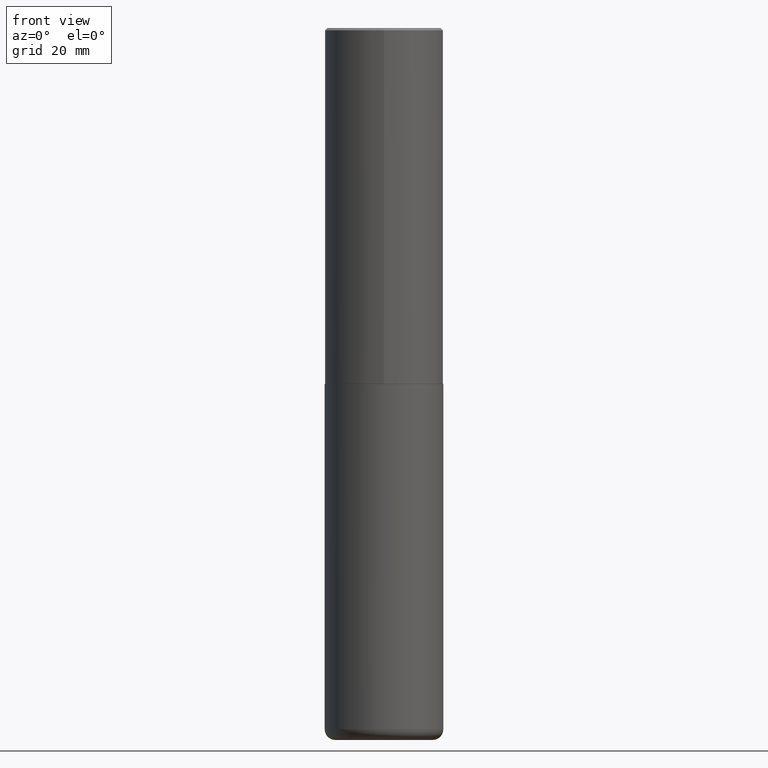
[diagram: clean part render]
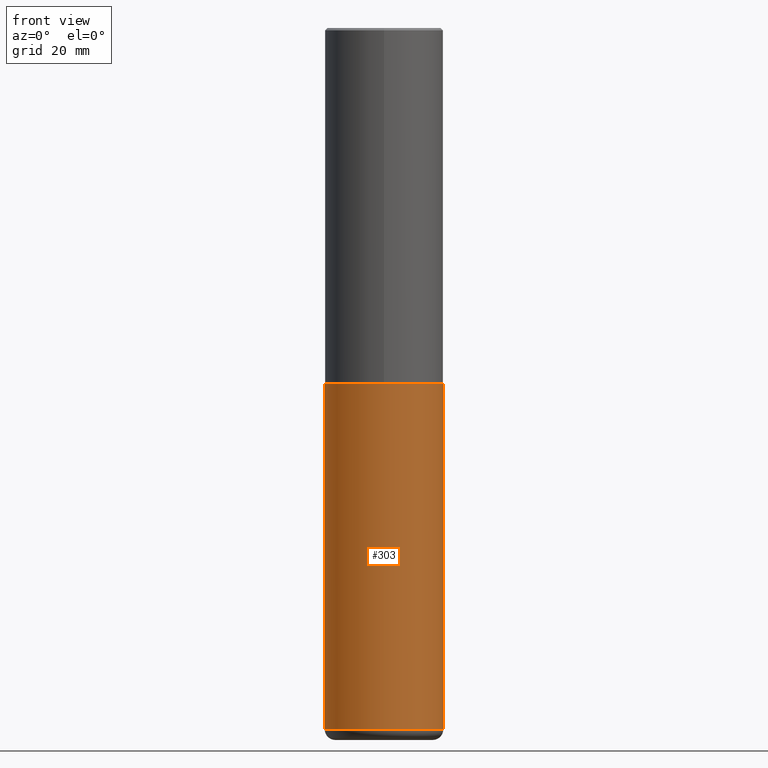
[diagram: same view with one face highlighted and labeled with its STEP entity id]
A machine part, front view. The second image highlights one B-rep face of the part: STEP entity #303.
In plain terms, the highlighted cylindrical surface (partial cylindrical patch) has radius 12.7 mm, axis along (-0, 0, 1).
Its self-contained STEP definition (entity closure, byte-faithful):
#34 = DIRECTION ( 'NONE',  ( -2.445468806185136877E-29, 3.491481338843145188E-15, 1.000000000000000000 ) ) ;
#43 = VECTOR ( 'NONE', #404, 39.37007874015748143 ) ;
#66 = VERTEX_POINT ( 'NONE', #88 ) ;
#69 = VERTEX_POINT ( 'NONE', #335 ) ;
#73 = CIRCLE ( 'NONE', #209, 0.5000000000000000000 ) ;
#81 = ORIENTED_EDGE ( 'NONE', *, *, #368, .T. ) ;
#88 = CARTESIAN_POINT ( 'NONE',  ( -0.5000000000000001110, -1.708194103376248851E-14, -5.910000000000000142 ) ) ;
#102 = DIRECTION ( 'NONE',  ( -2.445468806185136597E-29, 3.491481338843145583E-15, 1.000000000000000000 ) ) ;
#103 = VERTEX_POINT ( 'NONE', #152 ) ;
#108 = CARTESIAN_POINT ( 'NONE',  ( -0.5000000000000000000, -1.200183568574571118E-14, -3.000000000000000444 ) ) ;
#137 = DIRECTION ( 'NONE',  ( -2.445468806185136597E-29, 3.491481338843145583E-15, 1.000000000000000000 ) ) ;
#152 = CARTESIAN_POINT ( 'NONE',  ( 0.5000000000000000000, -1.396592535537257129E-14, -3.000000000000000444 ) ) ;
#208 = CARTESIAN_POINT ( 'NONE',  ( 0.5000000000000000000, -3.491481338843133355E-15, 2.438088387897967896E-29 ) ) ;
#209 = AXIS2_PLACEMENT_3D ( 'NONE', #390, #137, #329 ) ;
#232 = CARTESIAN_POINT ( 'NONE',  ( -0.5000000000000000000, 3.552713678800500929E-15, -2.459467545127452891E-29 ) ) ;
#237 = DIRECTION ( 'NONE',  ( 1.000000000000000000, -6.982962677686266711E-15, 4.876176775795935793E-29 ) ) ;
#241 = DIRECTION ( 'NONE',  ( -2.445468806185136597E-29, 3.491481338843145583E-15, 1.000000000000000000 ) ) ;
#265 = ORIENTED_EDGE ( 'NONE', *, *, #386, .T. ) ;
#267 = CYLINDRICAL_SURFACE ( 'NONE', #377, 0.5000000000000000000 ) ;
#273 = ORIENTED_EDGE ( 'NONE', *, *, #349, .F. ) ;
#275 = LINE ( 'NONE', #208, #300 ) ;
#293 = FACE_OUTER_BOUND ( 'NONE', #321, .T. ) ;
#297 = EDGE_CURVE ( 'NONE', #66, #345, #378, .T. ) ;
#300 = VECTOR ( 'NONE', #34, 39.37007874015748143 ) ;
#303 = ADVANCED_FACE ( 'NONE', ( #293 ), #267, .T. ) ;
#321 = EDGE_LOOP ( 'NONE', ( #352, #81, #265, #273 ) ) ;
#326 = CIRCLE ( 'NONE', #383, 0.5000000000000000000 ) ;
#329 = DIRECTION ( 'NONE',  ( 1.000000000000000000, -6.982962677686262766E-15, 0.000000000000000000 ) ) ;
#331 = DIRECTION ( 'NONE',  ( 1.000000000000000000, -6.982962677686266711E-15, 0.000000000000000000 ) ) ;
#335 = CARTESIAN_POINT ( 'NONE',  ( 0.5000000000000001110, -2.412613605140612280E-14, -5.910000000000000142 ) ) ;
#345 = VERTEX_POINT ( 'NONE', #108 ) ;
#349 = EDGE_CURVE ( 'NONE', #345, #103, #326, .T. ) ;
#352 = ORIENTED_EDGE ( 'NONE', *, *, #297, .F. ) ;
#368 = EDGE_CURVE ( 'NONE', #66, #69, #73, .T. ) ;
#377 = AXIS2_PLACEMENT_3D ( 'NONE', #411, #102, #237 ) ;
#378 = LINE ( 'NONE', #232, #43 ) ;
#383 = AXIS2_PLACEMENT_3D ( 'NONE', #418, #241, #331 ) ;
#386 = EDGE_CURVE ( 'NONE', #69, #103, #275, .T. ) ;
#390 = CARTESIAN_POINT ( 'NONE',  ( 1.445272064455415567E-28, -2.063465471256298944E-14, -5.910000000000000142 ) ) ;
#404 = DIRECTION ( 'NONE',  ( -2.445468806185136877E-29, 3.491481338843145188E-15, 1.000000000000000000 ) ) ;
#411 = CARTESIAN_POINT ( 'NONE',  ( 0.000000000000000000, 0.000000000000000000, 0.000000000000000000 ) ) ;
#418 = CARTESIAN_POINT ( 'NONE',  ( 7.336406418555409790E-29, -1.047444401652943635E-14, -3.000000000000000444 ) ) ;